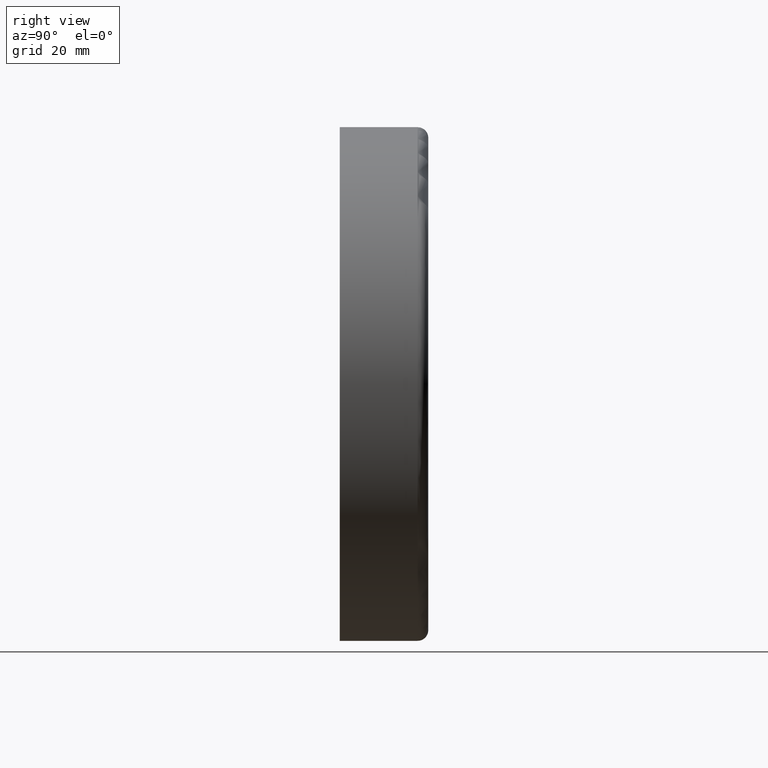
[diagram: clean part render]
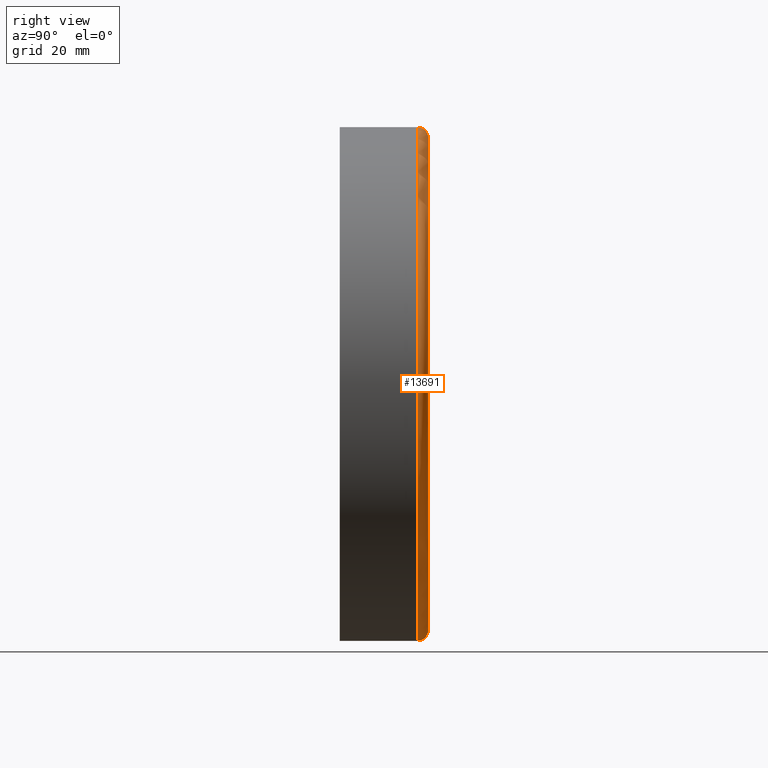
[diagram: same view with one face highlighted and labeled with its STEP entity id]
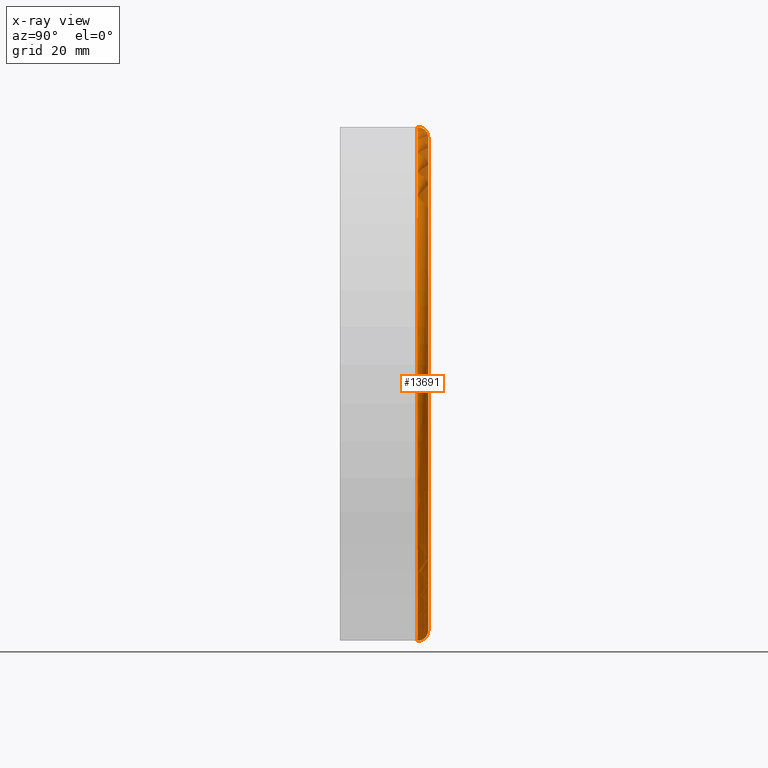
[diagram: x-ray of the same camera — body ghosted, the highlighted face saturated]
A machine part, right view. The second image highlights one B-rep face of the part: STEP entity #13691.
The next image is the same camera in x-ray: the body ghosted, the highlighted face saturated — about 0% of this face is hidden behind the body in this view.
In plain terms, the highlighted toroidal blend (fillet) surface has major radius 69.5 mm and minor (blend) radius 3 mm.
Its self-contained STEP definition (entity closure, byte-faithful):
#270 = DIRECTION ( 'NONE',  ( -0.000000000000000000, -1.000000000000000000, -0.000000000000000000 ) ) ;
#498 = DIRECTION ( 'NONE',  ( 0.000000000000000000, 0.000000000000000000, 1.000000000000000000 ) ) ;
#831 = VERTEX_POINT ( 'NONE', #15596 ) ;
#1178 = DIRECTION ( 'NONE',  ( -0.000000000000000000, -1.000000000000000000, -0.000000000000000000 ) ) ;
#2169 = VERTEX_POINT ( 'NONE', #4624 ) ;
#2181 = ORIENTED_EDGE ( 'NONE', *, *, #15496, .T. ) ;
#2500 = DIRECTION ( 'NONE',  ( 0.000000000000000000, 0.000000000000000000, -1.000000000000000000 ) ) ;
#2623 = CARTESIAN_POINT ( 'NONE',  ( 8.511295254074103841E-15, 22.00000000000000355, 69.49999999999998579 ) ) ;
#2975 = AXIS2_PLACEMENT_3D ( 'NONE', #10170, #1178, #5923 ) ;
#3392 = ORIENTED_EDGE ( 'NONE', *, *, #6481, .F. ) ;
#4624 = CARTESIAN_POINT ( 'NONE',  ( 8.878689293818309285E-15, 22.00000000000000355, 72.50000000000000000 ) ) ;
#4788 = FACE_OUTER_BOUND ( 'NONE', #13036, .T. ) ;
#5923 = DIRECTION ( 'NONE',  ( 0.000000000000000000, 0.000000000000000000, -1.000000000000000000 ) ) ;
#6481 = EDGE_CURVE ( 'NONE', #6599, #2169, #12912, .T. ) ;
#6599 = VERTEX_POINT ( 'NONE', #15351 ) ;
#6698 = CARTESIAN_POINT ( 'NONE',  ( 0.000000000000000000, 22.00000000000000355, -69.49999999999998579 ) ) ;
#6799 = AXIS2_PLACEMENT_3D ( 'NONE', #6698, #10384, #498 ) ;
#7302 = AXIS2_PLACEMENT_3D ( 'NONE', #15393, #14050, #15447 ) ;
#7459 = CARTESIAN_POINT ( 'NONE',  ( 0.000000000000000000, 22.00000000000000355, 0.000000000000000000 ) ) ;
#7490 = TOROIDAL_SURFACE ( 'NONE', #2975, 69.49999999999998579, 3.000000000000000888 ) ;
#8839 = CIRCLE ( 'NONE', #6799, 3.000000000000002665 ) ;
#8870 = DIRECTION ( 'NONE',  ( -1.224646799147354440E-16, 0.000000000000000000, -1.000000000000000000 ) ) ;
#9703 = ORIENTED_EDGE ( 'NONE', *, *, #11144, .T. ) ;
#10170 = CARTESIAN_POINT ( 'NONE',  ( 0.000000000000000000, 22.00000000000000355, 0.000000000000000000 ) ) ;
#10384 = DIRECTION ( 'NONE',  ( -1.000000000000000000, 0.000000000000000000, 0.000000000000000000 ) ) ;
#11144 = EDGE_CURVE ( 'NONE', #13619, #831, #12361, .T. ) ;
#12361 = CIRCLE ( 'NONE', #7302, 69.49999999999998579 ) ;
#12463 = DIRECTION ( 'NONE',  ( 1.000000000000000000, 0.000000000000000000, -1.224646799147353207E-16 ) ) ;
#12560 = AXIS2_PLACEMENT_3D ( 'NONE', #7459, #270, #2500 ) ;
#12912 = CIRCLE ( 'NONE', #12560, 72.50000000000000000 ) ;
#13000 = ORIENTED_EDGE ( 'NONE', *, *, #13671, .F. ) ;
#13036 = EDGE_LOOP ( 'NONE', ( #9703, #2181, #3392, #13000 ) ) ;
#13619 = VERTEX_POINT ( 'NONE', #13859 ) ;
#13671 = EDGE_CURVE ( 'NONE', #13619, #6599, #8839, .T. ) ;
#13676 = CIRCLE ( 'NONE', #15407, 3.000000000000002665 ) ;
#13691 = ADVANCED_FACE ( 'NONE', ( #4788 ), #7490, .T. ) ;
#13859 = CARTESIAN_POINT ( 'NONE',  ( 0.000000000000000000, 25.00000000000000000, -69.49999999999998579 ) ) ;
#14050 = DIRECTION ( 'NONE',  ( -0.000000000000000000, -1.000000000000000000, -0.000000000000000000 ) ) ;
#15351 = CARTESIAN_POINT ( 'NONE',  ( 0.000000000000000000, 22.00000000000000355, -72.50000000000000000 ) ) ;
#15393 = CARTESIAN_POINT ( 'NONE',  ( 0.000000000000000000, 25.00000000000000000, 0.000000000000000000 ) ) ;
#15407 = AXIS2_PLACEMENT_3D ( 'NONE', #2623, #12463, #8870 ) ;
#15447 = DIRECTION ( 'NONE',  ( 0.000000000000000000, 0.000000000000000000, -1.000000000000000000 ) ) ;
#15496 = EDGE_CURVE ( 'NONE', #831, #2169, #13676, .T. ) ;
#15596 = CARTESIAN_POINT ( 'NONE',  ( 8.694992273946206563E-15, 25.00000000000000000, 69.49999999999998579 ) ) ;